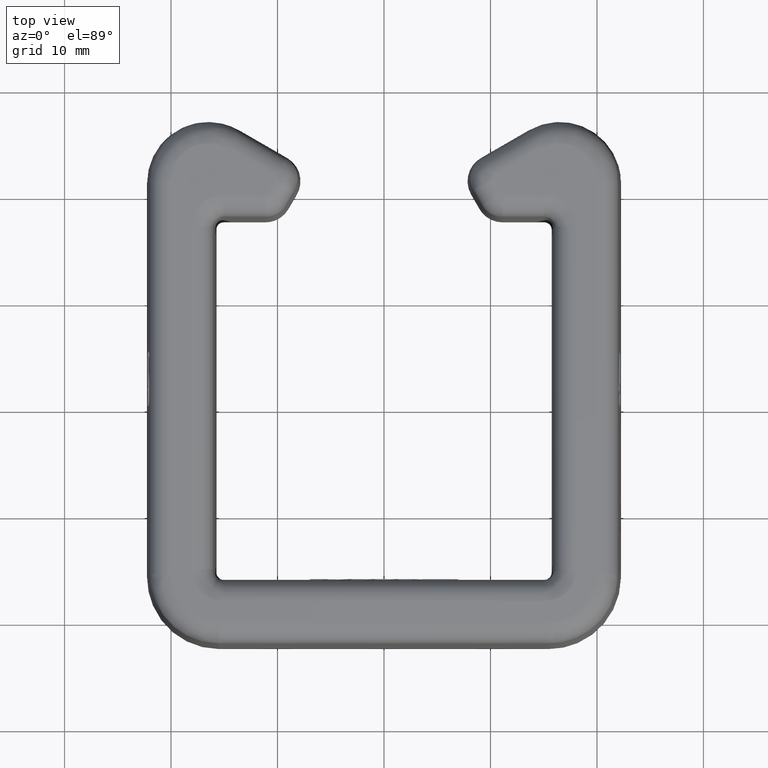
[diagram: clean part render]
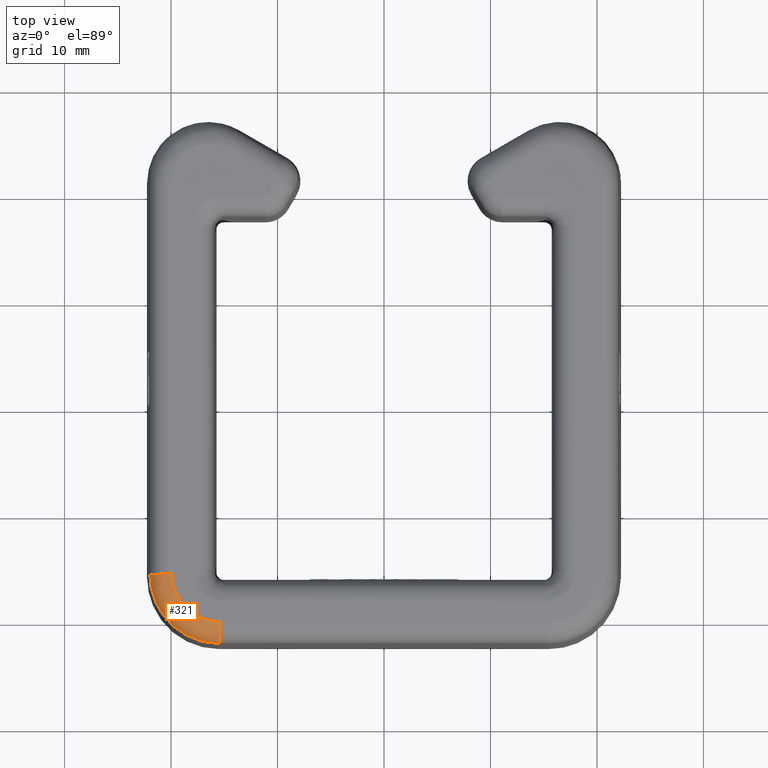
[diagram: same view with one face highlighted and labeled with its STEP entity id]
A machine part, top view. The second image highlights one B-rep face of the part: STEP entity #321.
In plain terms, the highlighted face is a freeform B-spline surface patch.
Its self-contained STEP definition (entity closure, byte-faithful):
#321=ADVANCED_FACE('',(#693),#694,.T.);
#693=FACE_OUTER_BOUND('',#2610,.T.);
#694=(B_SPLINE_SURFACE(3,3,((#2612,#2613,#2614,#2615),(#2616,#2617,#2618,#2619),(#2620,#2621,#2622,#2623),(#2624,#2625,#2626,#2627)),.UNSPECIFIED.,.F.,.F.,.F.)B_SPLINE_SURFACE_WITH_KNOTS((4,4),(4,4),(0.063614235270617,0.936385764730175),(0.0,1.0),.UNSPECIFIED.)RATIONAL_B_SPLINE_SURFACE(((0.957077234090173,0.770196279592879,0.770196279592879,0.957077234090173),(0.774116256090017,0.622960654768563,0.622960654768563,0.774116256090017),(0.774116256090183,0.622960654768696,0.622960654768696,0.774116256090183),(0.957077234090671,0.77019627959328,0.77019627959328,0.957077234090671)))BOUNDED_SURFACE()REPRESENTATION_ITEM('')GEOMETRIC_REPRESENTATION_ITEM()SURFACE());
#2610=EDGE_LOOP('',(#3816,#3817,#3818,#3819));
#2612=CARTESIAN_POINT('',(-15.4999999999987,-1.98430086409798,15.0349048128749));
#2613=CARTESIAN_POINT('',(-19.2984155036733,-1.98430086410112,15.0349048128749));
#2614=CARTESIAN_POINT('',(-21.9843008640872,0.701584496309859,15.0349048128749));
#2615=CARTESIAN_POINT('',(-21.9843008640881,4.49999999998446,15.0349048128749));
#2616=CARTESIAN_POINT('',(-15.4999999999987,-1.96413593712039,16.1901527056956));
#2617=CARTESIAN_POINT('',(-19.2866031629341,-1.96413593712352,16.1901527056956));
#2618=CARTESIAN_POINT('',(-21.9641359371096,0.713396837049077,16.1901527056956));
#2619=CARTESIAN_POINT('',(-21.9641359371105,4.49999999998447,16.1901527056956));
#2620=CARTESIAN_POINT('',(-15.4999999999994,-1.1400293432552,17.0000000000012));
#2621=CARTESIAN_POINT('',(-18.8038526970894,-1.14002934325793,17.0000000000012));
#2622=CARTESIAN_POINT('',(-21.1400293432445,1.19614730289464,17.0000000000012));
#2623=CARTESIAN_POINT('',(-21.1400293432453,4.49999999998467,17.0000000000012));
#2624=CARTESIAN_POINT('',(-15.5000000000003,0.0153945262169471,17.0));
#2625=CARTESIAN_POINT('',(-18.1270210646429,0.0153945262147743,17.0));
#2626=CARTESIAN_POINT('',(-19.9846054737725,1.87297893534242,17.0));
#2627=CARTESIAN_POINT('',(-19.9846054737732,4.49999999998497,17.0));
#3816=ORIENTED_EDGE('',*,*,#4161,.F.);
#3817=ORIENTED_EDGE('',*,*,#4343,.F.);
#3818=ORIENTED_EDGE('',*,*,#4167,.T.);
#3819=ORIENTED_EDGE('',*,*,#4309,.T.);
#4161=EDGE_CURVE('',#4830,#4831,#4832,.T.);
#4167=EDGE_CURVE('',#4843,#4841,#4844,.T.);
#4309=EDGE_CURVE('',#4841,#4831,#5079,.T.);
#4343=EDGE_CURVE('',#4843,#4830,#5120,.T.);
#4830=VERTEX_POINT('',#6790);
#4831=VERTEX_POINT('',#6791);
#4832=(B_SPLINE_CURVE(3,(#6793,#6794,#6795,#6796),.UNSPECIFIED.,.F.,.F.)B_SPLINE_CURVE_WITH_KNOTS((4,4),(-1.0,0.0),.UNSPECIFIED.)RATIONAL_B_SPLINE_CURVE((1.0,0.808833632769454,0.808833632769454,1.0))BOUNDED_CURVE()REPRESENTATION_ITEM('')GEOMETRIC_REPRESENTATION_ITEM()CURVE());
#4841=VERTEX_POINT('',#6833);
#4843=VERTEX_POINT('',#6836);
#4844=(B_SPLINE_CURVE(3,(#6838,#6839,#6840,#6841),.UNSPECIFIED.,.F.,.F.)B_SPLINE_CURVE_WITH_KNOTS((4,4),(0.063614235270617,0.936385764730175),.UNSPECIFIED.)RATIONAL_B_SPLINE_CURVE((0.957077234090173,0.774116256090017,0.774116256090183,0.957077234090671))BOUNDED_CURVE()REPRESENTATION_ITEM('')GEOMETRIC_REPRESENTATION_ITEM()CURVE());
#5079=(B_SPLINE_CURVE(3,(#7953,#7954,#7955,#7956),.UNSPECIFIED.,.F.,.F.)B_SPLINE_CURVE_WITH_KNOTS((4,4),(0.0,1.0),.UNSPECIFIED.)RATIONAL_B_SPLINE_CURVE((0.957077234090671,0.77019627959328,0.77019627959328,0.957077234090671))BOUNDED_CURVE()REPRESENTATION_ITEM('')GEOMETRIC_REPRESENTATION_ITEM()CURVE());
#5120=(B_SPLINE_CURVE(3,(#8262,#8263,#8264,#8265),.UNSPECIFIED.,.F.,.F.)B_SPLINE_CURVE_WITH_KNOTS((4,4),(0.0,1.0),.UNSPECIFIED.)RATIONAL_B_SPLINE_CURVE((1.0,0.804737854124229,0.804737854124229,1.0))BOUNDED_CURVE()REPRESENTATION_ITEM('')GEOMETRIC_REPRESENTATION_ITEM()CURVE());
#6790=CARTESIAN_POINT('',(-21.9843008640868,4.49999999998444,15.0349048128746));
#6791=CARTESIAN_POINT('',(-19.9846054737738,4.49999999998497,17.0));
#6793=CARTESIAN_POINT('',(-21.9843008640856,4.49999999998446,15.0349048128745));
#6794=CARTESIAN_POINT('',(-21.9641359371083,4.49999999998447,16.1901527056943));
#6795=CARTESIAN_POINT('',(-21.1400293432443,4.49999999998468,17.0));
#6796=CARTESIAN_POINT('',(-19.9846054737728,4.49999999998497,17.0));
#6833=CARTESIAN_POINT('',(-15.5000000000003,0.0153945262166311,17.0));
#6836=CARTESIAN_POINT('',(-15.4999999999986,-1.98430086409614,15.0349048128747));
#6838=CARTESIAN_POINT('',(-15.4999999999987,-1.98430086409798,15.0349048128749));
#6839=CARTESIAN_POINT('',(-15.4999999999987,-1.96413593712039,16.1901527056956));
#6840=CARTESIAN_POINT('',(-15.4999999999994,-1.1400293432552,17.0000000000012));
#6841=CARTESIAN_POINT('',(-15.5000000000003,0.0153945262169471,17.0));
#7953=CARTESIAN_POINT('',(-15.5000000000003,0.0153945262169471,17.0));
#7954=CARTESIAN_POINT('',(-18.1270210646429,0.0153945262147743,17.0));
#7955=CARTESIAN_POINT('',(-19.9846054737725,1.87297893534242,17.0));
#7956=CARTESIAN_POINT('',(-19.9846054737732,4.49999999998497,17.0));
#8262=CARTESIAN_POINT('',(-15.4999999999987,-1.98430086409798,15.0349048128745));
#8263=CARTESIAN_POINT('',(-19.2984155036733,-1.98430086410113,15.0349048128745));
#8264=CARTESIAN_POINT('',(-21.9843008640872,0.701584496309848,15.0349048128745));
#8265=CARTESIAN_POINT('',(-21.9843008640881,4.49999999998446,15.0349048128745));